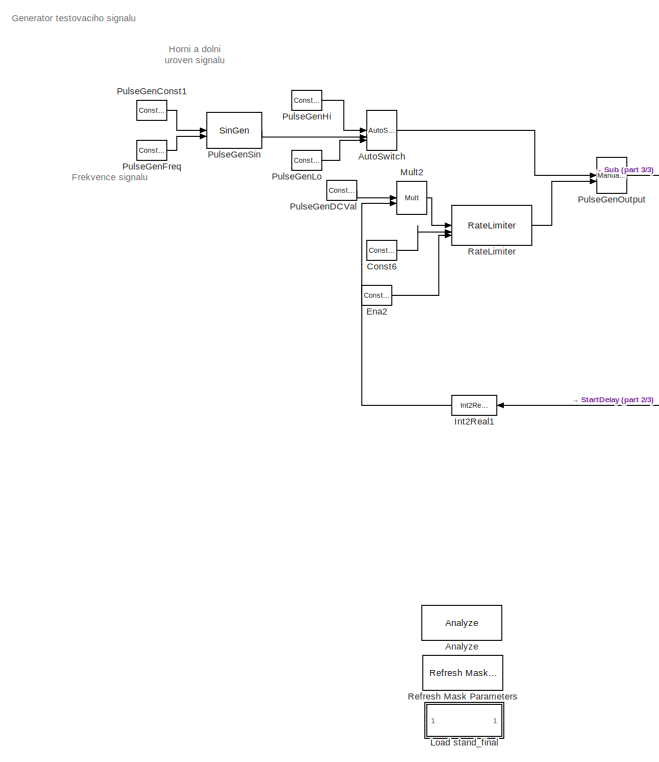
[diagram: root canvas - part 1/3, middle left region]
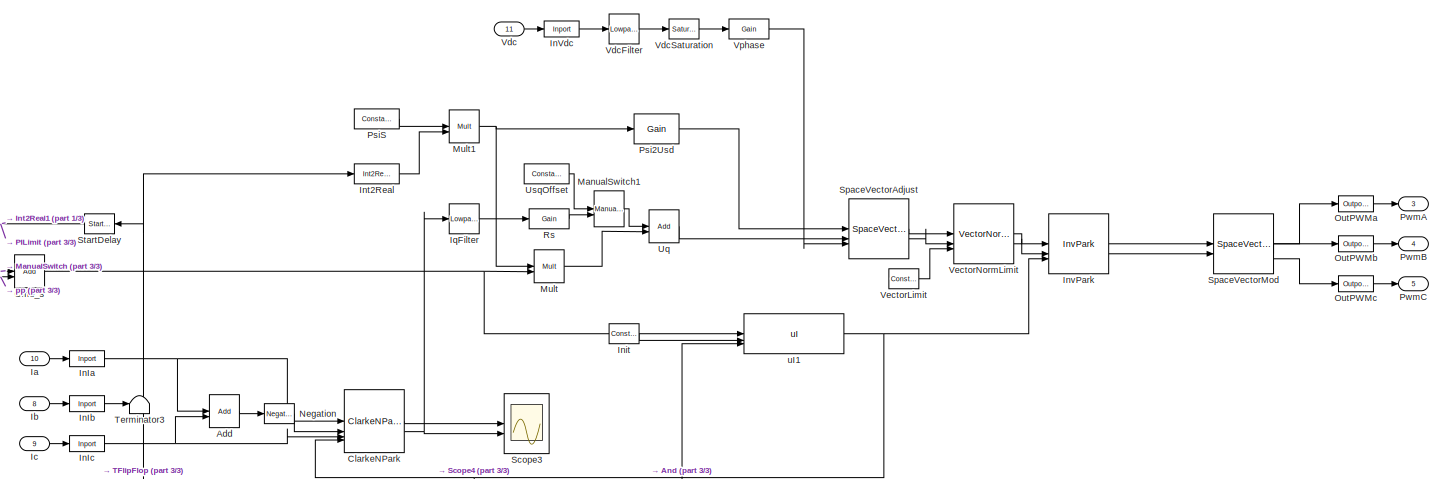
[diagram: root canvas - part 2/3, middle right region]
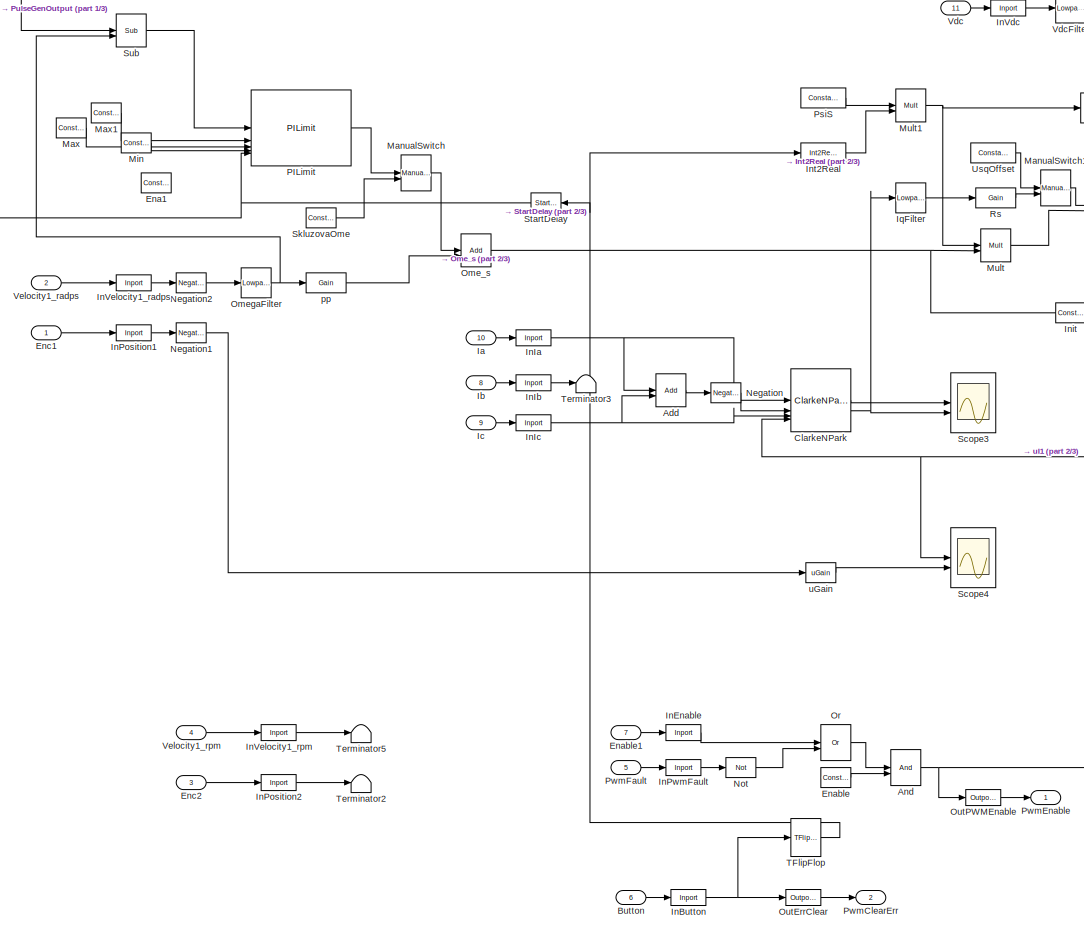
[diagram: root canvas - part 3/3, center side, full height]
MODEL slx_706b30276f91
KIND model
CONFIG AbsTol = auto
CONFIG EnableMultiTasking = on
CONFIG FixedStep = auto
CONFIG MaxStep = auto
CONFIG MinStep = auto
CONFIG RelTol = 1e-3
CONFIG SampleTimeConstraint = Unconstrained
CONFIG SolverName = ode45
CONFIG StartTime = 0.0
CONFIG StopTime = 10.0
BLOCK [Reference] Add  REF=Math/Add
  SourceBlock = Math/Add
  SourceProductName = X2C Math
  SourceType = X2C - Add
BLOCK [Reference] Analyze  REF=Basic/Analyze
  SourceBlock = Basic/Analyze
  SourceProductName = X2C Basic
  SourceType = X2C System Block
BLOCK [Reference] And  REF=General/And
  SourceBlock = General/And
  SourceProductName = X2C General
  SourceType = X2C - And
BLOCK [Reference] AutoSwitch  REF=General/AutoSwitch
  SourceBlock = General/AutoSwitch
  SourceProductName = X2C General
  SourceType = X2C - AutoSwitch
BLOCK [Inport] Button
  Port = 6
BLOCK [Reference] ClarkeNPark  REF=MotorControl/ClarkeNPark
  SourceBlock = MotorControl/ClarkeNPark
  SourceProductName = X2C MotorControl
  SourceType = X2C - ClarkeNPark
BLOCK [Reference] Const6  REF=General/Constant
  SourceBlock = General/Constant
  SourceProductName = X2C General
  SourceType = X2C - Constant
BLOCK [Reference] Ena1  REF=General/Constant
  Commented = on
  SourceBlock = General/Constant
  SourceProductName = X2C General
  SourceType = X2C - Constant
BLOCK [Reference] Ena2  REF=General/Constant
  SourceBlock = General/Constant
  SourceProductName = X2C General
  SourceType = X2C - Constant
BLOCK [Reference] Enable  REF=General/Constant
  SourceBlock = General/Constant
  SourceProductName = X2C General
  SourceType = X2C - Constant
BLOCK [Inport] Enable1
  Port = 7
BLOCK [Inport] Enc1
BLOCK [Inport] Enc2
  Port = 3
BLOCK [Inport] Ia
  Port = 10
BLOCK [Inport] Ib
  Port = 8
BLOCK [Inport] Ic
  Port = 9
BLOCK [Reference] InButton  REF=General/Inport
  SourceBlock = General/Inport
  SourceProductName = X2C General
  SourceType = X2C - Inport
BLOCK [Reference] InEnable  REF=General/Inport
  SourceBlock = General/Inport
  SourceProductName = X2C General
  SourceType = X2C - Inport
BLOCK [Reference] InIa  REF=General/Inport
  SourceBlock = General/Inport
  SourceProductName = X2C General
  SourceType = X2C - Inport
BLOCK [Reference] InIb  REF=General/Inport
  SourceBlock = General/Inport
  SourceProductName = X2C General
  SourceType = X2C - Inport
BLOCK [Reference] InIc  REF=General/Inport
  SourceBlock = General/Inport
  SourceProductName = X2C General
  SourceType = X2C - Inport
BLOCK [Reference] InPosition1  REF=General/Inport
  SourceBlock = General/Inport
  SourceProductName = X2C General
  SourceType = X2C - Inport
BLOCK [Reference] InPosition2  REF=General/Inport
  SourceBlock = General/Inport
  SourceProductName = X2C General
  SourceType = X2C - Inport
BLOCK [Reference] InPwmFault  REF=General/Inport
  SourceBlock = General/Inport
  SourceProductName = X2C General
  SourceType = X2C - Inport
BLOCK [Reference] InVdc  REF=General/Inport
  SourceBlock = General/Inport
  SourceProductName = X2C General
  SourceType = X2C - Inport
BLOCK [Reference] InVelocity1_radps  REF=General/Inport
  SourceBlock = General/Inport
  SourceProductName = X2C General
  SourceType = X2C - Inport
BLOCK [Reference] InVelocity1_rpm  REF=General/Inport
  SourceBlock = General/Inport
  SourceProductName = X2C General
  SourceType = X2C - Inport
BLOCK [Reference] Init  REF=General/Constant
  SourceBlock = General/Constant
  SourceProductName = X2C General
  SourceType = X2C - Constant
BLOCK [Reference] Int2Real  REF=General/Int2Real
  SourceBlock = General/Int2Real
  SourceProductName = X2C General
  SourceType = X2C - Int2Real
BLOCK [Reference] Int2Real1  REF=General/Int2Real
  SourceBlock = General/Int2Real
  SourceProductName = X2C General
  SourceType = X2C - Int2Real
BLOCK [Reference] InvPark  REF=MotorControl/InvPark
  SourceBlock = MotorControl/InvPark
  SourceProductName = X2C MotorControl
  SourceType = X2C - InvPark
BLOCK [Reference] IqFilter  REF=Filter/LowpassBiQ
  SourceBlock = Filter/LowpassBiQ
  SourceProductName = X2C Filter
  SourceType = X2C - LowpassBiQ
BLOCK [SubSystem] Load stand_final
  InitFcn = stand_final
  OpenFcn = stand_final
BLOCK [Reference] ManualSwitch  REF=General/ManualSwitch
  SourceBlock = General/ManualSwitch
  SourceProductName = X2C General
  SourceType = X2C - ManualSwitch
BLOCK [Reference] ManualSwitch1  REF=General/ManualSwitch
  SourceBlock = General/ManualSwitch
  SourceProductName = X2C General
  SourceType = X2C - ManualSwitch
BLOCK [Reference] Max  REF=General/Constant
  SourceBlock = General/Constant
  SourceProductName = X2C General
  SourceType = X2C - Constant
BLOCK [Reference] Max1  REF=General/Constant
  SourceBlock = General/Constant
  SourceProductName = X2C General
  SourceType = X2C - Constant
BLOCK [Reference] Min  REF=General/Constant
  SourceBlock = General/Constant
  SourceProductName = X2C General
  SourceType = X2C - Constant
BLOCK [Reference] Mult  REF=Math/Mult
  SourceBlock = Math/Mult
  SourceProductName = X2C Math
  SourceType = X2C - Mult
BLOCK [Reference] Mult1  REF=Math/Mult
  SourceBlock = Math/Mult
  SourceProductName = X2C Math
  SourceType = X2C - Mult
BLOCK [Reference] Mult2  REF=Math/Mult
  SourceBlock = Math/Mult
  SourceProductName = X2C Math
  SourceType = X2C - Mult
BLOCK [Reference] Negation  REF=Math/Negation
  SourceBlock = Math/Negation
  SourceProductName = X2C Math
  SourceType = X2C - Negation
BLOCK [Reference] Negation1  REF=Math/Negation
  SourceBlock = Math/Negation
  SourceProductName = X2C Math
  SourceType = X2C - Negation
BLOCK [Reference] Negation2  REF=Math/Negation
  SourceBlock = Math/Negation
  SourceProductName = X2C Math
  SourceType = X2C - Negation
BLOCK [Reference] Not  REF=General/Not
  SourceBlock = General/Not
  SourceProductName = X2C General
  SourceType = X2C - Not
BLOCK [Reference] Ome_s  REF=Math/Add
  SourceBlock = Math/Add
  SourceProductName = X2C Math
  SourceType = X2C - Add
BLOCK [Reference] OmegaFilter  REF=Filter/LowpassBiQ
  SourceBlock = Filter/LowpassBiQ
  SourceProductName = X2C Filter
  SourceType = X2C - LowpassBiQ
BLOCK [Reference] Or  REF=General/Or
  SourceBlock = General/Or
  SourceProductName = X2C General
  SourceType = X2C - Or
BLOCK [Reference] OutErrClear  REF=General/Outport
  SourceBlock = General/Outport
  SourceProductName = X2C General
  SourceType = X2C - Outport
BLOCK [Reference] OutPWMEnable  REF=General/Outport
  SourceBlock = General/Outport
  SourceProductName = X2C General
  SourceType = X2C - Outport
BLOCK [Reference] OutPWMa  REF=General/Outport
  SourceBlock = General/Outport
  SourceProductName = X2C General
  SourceType = X2C - Outport
BLOCK [Reference] OutPWMb  REF=General/Outport
  SourceBlock = General/Outport
  SourceProductName = X2C General
  SourceType = X2C - Outport
BLOCK [Reference] OutPWMc  REF=General/Outport
  SourceBlock = General/Outport
  SourceProductName = X2C General
  SourceType = X2C - Outport
BLOCK [Reference] PILimit  REF=Control/PILimit
  SourceBlock = Control/PILimit
  SourceProductName = X2C Control
  SourceType = X2C - PILimit
BLOCK [Reference] Psi2Usd  REF=General/Gain
  SourceBlock = General/Gain
  SourceProductName = X2C General
  SourceType = X2C - Gain
BLOCK [Reference] PsiS  REF=General/Constant
  SourceBlock = General/Constant
  SourceProductName = X2C General
  SourceType = X2C - Constant
BLOCK [Reference] PulseGenConst1  REF=General/Constant
  SourceBlock = General/Constant
  SourceProductName = X2C General
  SourceType = X2C - Constant
BLOCK [Reference] PulseGenDCVal  REF=General/Constant
  SourceBlock = General/Constant
  SourceProductName = X2C General
  SourceType = X2C - Constant
BLOCK [Reference] PulseGenFreq  REF=General/Constant
  SourceBlock = General/Constant
  SourceProductName = X2C General
  SourceType = X2C - Constant
BLOCK [Reference] PulseGenHi  REF=General/Constant
  SourceBlock = General/Constant
  SourceProductName = X2C General
  SourceType = X2C - Constant
BLOCK [Reference] PulseGenLo  REF=General/Constant
  SourceBlock = General/Constant
  SourceProductName = X2C General
  SourceType = X2C - Constant
BLOCK [Reference] PulseGenOutput  REF=General/ManualSwitch
  SourceBlock = General/ManualSwitch
  SourceProductName = X2C General
  SourceType = X2C - ManualSwitch
BLOCK [Reference] PulseGenSin  REF=General/SinGen
  SourceBlock = General/SinGen
  SourceProductName = X2C General
  SourceType = X2C - SinGen
BLOCK [Outport] PwmA
  Port = 3
BLOCK [Outport] PwmB
  Port = 4
BLOCK [Outport] PwmC
  Port = 5
BLOCK [Outport] PwmClearErr
  Port = 2
BLOCK [Outport] PwmEnable
BLOCK [Inport] PwmFault
  Port = 5
BLOCK [Reference] RateLimiter  REF=General/RateLimiter
  SourceBlock = General/RateLimiter
  SourceProductName = X2C General
  SourceType = X2C - RateLimiter
BLOCK [Reference] Refresh Mask Parameters  REF=Basic/Refresh Mask Parameters
  SourceBlock = Basic/Refresh Mask Parameters
  SourceProductName = X2C Basic
  SourceType = X2C System Block
BLOCK [Reference] Rs  REF=General/Gain
  SourceBlock = General/Gain
  SourceProductName = X2C General
  SourceType = X2C - Gain
BLOCK [Scope] Scope3
  Floating = off
  NameLocation = top
  NumInputPorts = 2
  ScopeSpecificationString = Simulink.scopes.TimeScopeBlockCfg('CurrentConfiguration', extmgr.ConfigurationSet(extmgr.Configuration('Core','General UI',true),extmgr.Configuration('Core','Source UI',true),extmgr.Configuration('Sources','WiredSimulink',true,'DataLoggingVariableName','ScopeData1'),extmgr.Configuration('Visuals','Time Domain',true,'SerializedDisplays',{struct('MinYLimReal','-0.45212','MaxYLimReal','2.25034','YLab...<+2044ch>
BLOCK [Scope] Scope4
  Floating = off
  NameLocation = top
  NumInputPorts = 2
  ScopeSpecificationString = Simulink.scopes.TimeScopeBlockCfg('CurrentConfiguration', extmgr.ConfigurationSet(extmgr.Configuration('Core','General UI',true),extmgr.Configuration('Core','Source UI',true),extmgr.Configuration('Sources','WiredSimulink',true),extmgr.Configuration('Visuals','Time Domain',true,'SerializedDisplays',{struct('MinYLimReal','-0.45212','MaxYLimReal','2.25034','YLabelReal','','MinYLimMag','0.00000','MaxY...<+2157ch>
BLOCK [Reference] SkluzovaOme  REF=General/Constant
  SourceBlock = General/Constant
  SourceProductName = X2C General
  SourceType = X2C - Constant
BLOCK [Reference] SpaceVectorAdjust  REF=MotorControl/SpaceVectorAdjust
  SourceBlock = MotorControl/SpaceVectorAdjust
  SourceProductName = X2C MotorControl
  SourceType = X2C - SpaceVectorAdjust
BLOCK [Reference] SpaceVectorMod  REF=MotorControl/SpaceVectorMod
  SourceBlock = MotorControl/SpaceVectorMod
  SourceProductName = X2C MotorControl
  SourceType = X2C - SpaceVectorMod
BLOCK [Reference] StartDelay  REF=StateControl/StartDelay
  SourceBlock = StateControl/StartDelay
  SourceProductName = X2C StateControl
  SourceType = X2C - StartDelay
BLOCK [Reference] Sub  REF=Math/Sub
  SourceBlock = Math/Sub
  SourceProductName = X2C Math
  SourceType = X2C - Sub
BLOCK [Reference] TFlipFlop  REF=StateControl/TFlipFlop
  SourceBlock = StateControl/TFlipFlop
  SourceProductName = X2C StateControl
  SourceType = X2C - TFlipFlop
BLOCK [Terminator] Terminator2
BLOCK [Terminator] Terminator3
BLOCK [Terminator] Terminator5
BLOCK [Reference] Uq  REF=Math/Add
  SourceBlock = Math/Add
  SourceProductName = X2C Math
  SourceType = X2C - Add
BLOCK [Reference] UsqOffset  REF=General/Constant
  SourceBlock = General/Constant
  SourceProductName = X2C General
  SourceType = X2C - Constant
BLOCK [Inport] Vdc
  Port = 11
BLOCK [Reference] VdcFilter  REF=Filter/LowpassBiQ
  SourceBlock = Filter/LowpassBiQ
  SourceProductName = X2C Filter
  SourceType = X2C - LowpassBiQ
BLOCK [Reference] VdcSaturation  REF=General/Saturation
  SourceBlock = General/Saturation
  SourceProductName = X2C General
  SourceType = X2C - Saturation
BLOCK [Reference] VectorLimit  REF=General/Constant
  SourceBlock = General/Constant
  SourceProductName = X2C General
  SourceType = X2C - Constant
BLOCK [Reference] VectorNormLimit  REF=MotorControl/VectorNormLimit
  SourceBlock = MotorControl/VectorNormLimit
  SourceProductName = X2C MotorControl
  SourceType = X2C - VectorNormLimit
BLOCK [Inport] Velocity1_radps
  Port = 2
BLOCK [Inport] Velocity1_rpm
  Port = 4
BLOCK [Reference] Vphase  REF=General/Gain
  SourceBlock = General/Gain
  SourceProductName = X2C General
  SourceType = X2C - Gain
BLOCK [Reference] pp  REF=General/Gain
  SourceBlock = General/Gain
  SourceProductName = X2C General
  SourceType = X2C - Gain
BLOCK [Reference] uGain  REF=General/uGain
  SourceBlock = General/uGain
  SourceProductName = X2C General
  SourceType = X2C - uGain
BLOCK [Reference] uI1  REF=Control/uI
  SourceBlock = Control/uI
  SourceProductName = X2C Control
  SourceType = X2C - uI
ANNOTATION (root): Frekvence signalu
ANNOTATION (root): Generator testovaciho signalu
ANNOTATION (root): Horni a dolni uroven signalu
LINE Add:1 -> Negation:1
NET And:1 -> OutPWMEnable:1, uI1:3
LINE AutoSwitch:1 -> PulseGenOutput:1
LINE Button:1 -> InButton:1
LINE ClarkeNPark:1 -> Scope3:1
NET ClarkeNPark:2 -> IqFilter:1, Scope3:2
LINE Const6:1 -> RateLimiter:2
LINE Ena2:1 -> RateLimiter:3
LINE Enable1:1 -> InEnable:1
LINE Enable:1 -> And:2
LINE Enc1:1 -> InPosition1:1
LINE Enc2:1 -> InPosition2:1
LINE Ia:1 -> InIa:1
LINE Ib:1 -> InIb:1
LINE Ic:1 -> InIc:1
NET InButton:1 -> OutErrClear:1, TFlipFlop:1
LINE InEnable:1 -> Or:1
NET InIa:1 -> Add:1, ClarkeNPark:1
LINE InIb:1 -> Terminator3:1
NET InIc:1 -> Add:2, ClarkeNPark:3
LINE InPosition1:1 -> Negation1:1
LINE InPosition2:1 -> Terminator2:1
LINE InPwmFault:1 -> Not:1
LINE InVdc:1 -> VdcFilter:1
LINE InVelocity1_radps:1 -> Negation2:1
LINE InVelocity1_rpm:1 -> Terminator5:1
LINE Init:1 -> uI1:2
LINE Int2Real1:1 -> Mult2:2
LINE Int2Real:1 -> Mult1:2
LINE InvPark:1 -> SpaceVectorMod:1
LINE InvPark:2 -> SpaceVectorMod:2
LINE IqFilter:1 -> Rs:1
LINE ManualSwitch1:1 -> Uq:1
LINE ManualSwitch:1 -> Ome_s:1
LINE Max1:1 -> PILimit:2
LINE Max:1 -> PILimit:3
LINE Min:1 -> PILimit:4
NET Mult1:1 -> Mult:1, Psi2Usd:1
LINE Mult2:1 -> RateLimiter:1
LINE Mult:1 -> Uq:2
LINE Negation1:1 -> uGain:1
LINE Negation2:1 -> OmegaFilter:1
LINE Negation:1 -> ClarkeNPark:2
LINE Not:1 -> Or:2
NET Ome_s:1 -> Mult:2, uI1:1
NET OmegaFilter:1 -> Sub:2, pp:1
LINE Or:1 -> And:1
LINE OutErrClear:1 -> PwmClearErr:1
LINE OutPWMEnable:1 -> PwmEnable:1
LINE OutPWMa:1 -> PwmA:1
LINE OutPWMb:1 -> PwmB:1
LINE OutPWMc:1 -> PwmC:1
LINE PILimit:1 -> ManualSwitch:1
LINE Psi2Usd:1 -> SpaceVectorAdjust:1
LINE PsiS:1 -> Mult1:1
LINE PulseGenConst1:1 -> PulseGenSin:1
LINE PulseGenDCVal:1 -> Mult2:1
LINE PulseGenFreq:1 -> PulseGenSin:2
LINE PulseGenHi:1 -> AutoSwitch:1
LINE PulseGenLo:1 -> AutoSwitch:3
LINE PulseGenOutput:1 -> Sub:1
LINE PulseGenSin:1 -> AutoSwitch:2
LINE PwmFault:1 -> InPwmFault:1
LINE RateLimiter:1 -> PulseGenOutput:2
LINE Rs:1 -> ManualSwitch1:2
LINE SkluzovaOme:1 -> ManualSwitch:2
LINE SpaceVectorAdjust:1 -> VectorNormLimit:1
LINE SpaceVectorAdjust:2 -> VectorNormLimit:2
LINE SpaceVectorMod:1 -> OutPWMa:1
LINE SpaceVectorMod:2 -> OutPWMb:1
LINE SpaceVectorMod:3 -> OutPWMc:1
NET StartDelay:1 -> Int2Real1:1, PILimit:5
LINE Sub:1 -> PILimit:1
NET TFlipFlop:1 -> Int2Real:1, StartDelay:1
LINE Uq:1 -> SpaceVectorAdjust:2
LINE UsqOffset:1 -> ManualSwitch1:1
LINE Vdc:1 -> InVdc:1
LINE VdcFilter:1 -> VdcSaturation:1
LINE VdcSaturation:1 -> Vphase:1
LINE VectorLimit:1 -> VectorNormLimit:3
LINE VectorNormLimit:1 -> InvPark:1
LINE VectorNormLimit:2 -> InvPark:2
LINE Velocity1_radps:1 -> InVelocity1_radps:1
LINE Velocity1_rpm:1 -> InVelocity1_rpm:1
LINE Vphase:1 -> SpaceVectorAdjust:3
LINE pp:1 -> Ome_s:2
LINE uGain:1 -> Scope4:2
NET uI1:1 -> ClarkeNPark:4, InvPark:3, Scope4:1
note: NET lines group one-source signal fan-out (src -> all destinations, sorted); 1:1 wires keep LINE
